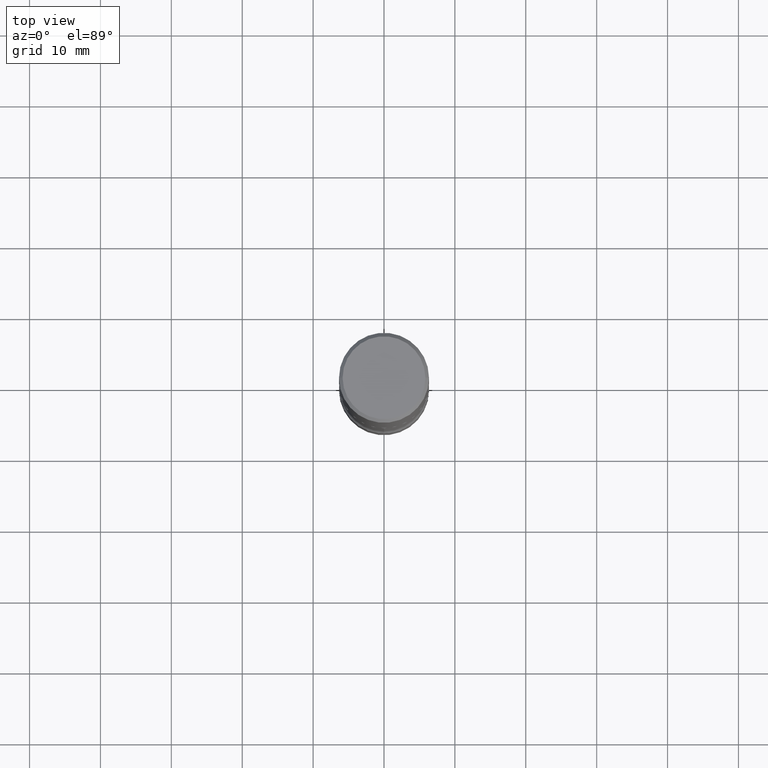
[diagram: clean part render]
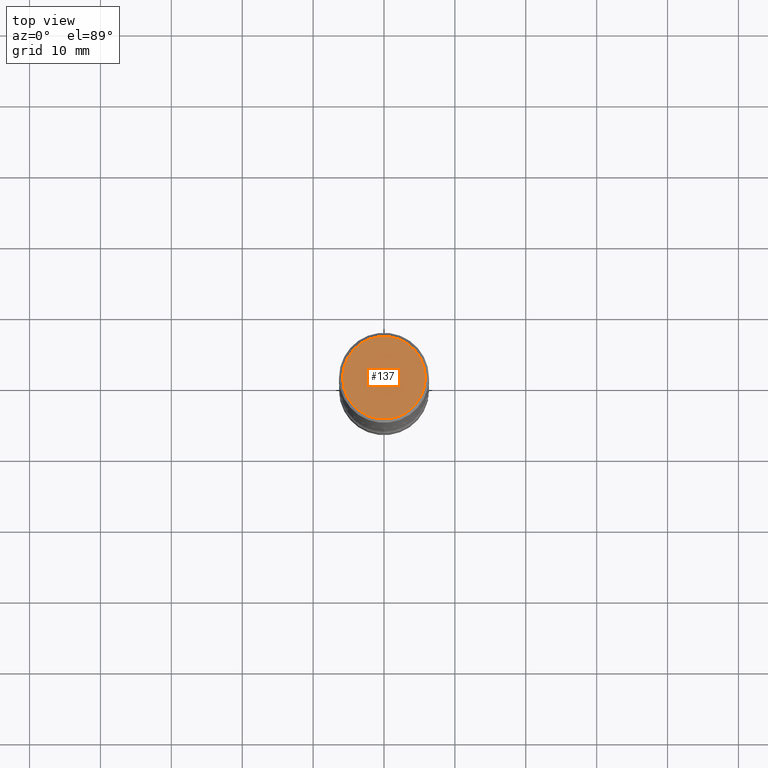
[diagram: same view with one face highlighted and labeled with its STEP entity id]
A machine part, top view. The second image highlights one B-rep face of the part: STEP entity #137.
In plain terms, the highlighted planar face has unit normal (0, -0, -1).
Its self-contained STEP definition (entity closure, byte-faithful):
#43 = AXIS2_PLACEMENT_3D ( 'NONE', #199, #61, #460 ) ;
#50 = DIRECTION ( 'NONE',  ( 1.000000000000000000, -6.982962677686265922E-15, 4.876225828469305518E-29 ) ) ;
#52 = CARTESIAN_POINT ( 'NONE',  ( 0.2300000000000001488, -1.681434332853599997E-15, 4.268512490111905999E-18 ) ) ;
#60 = DIRECTION ( 'NONE',  ( -2.445468806185136597E-29, 3.491481338843145583E-15, 1.000000000000000000 ) ) ;
#61 = DIRECTION ( 'NONE',  ( -2.445468806185136597E-29, 3.491481338843145583E-15, 1.000000000000000000 ) ) ;
#69 = PLANE ( 'NONE',  #349 ) ;
#71 = EDGE_LOOP ( 'NONE', ( #219, #207 ) ) ;
#126 = EDGE_CURVE ( 'NONE', #309, #376, #289, .T. ) ;
#137 = ADVANCED_FACE ( 'NONE', ( #386 ), #69, .F. ) ;
#157 = DIRECTION ( 'NONE',  ( -1.000000000000000000, 6.982962677686265922E-15, -4.876176775795935793E-29 ) ) ;
#186 = CARTESIAN_POINT ( 'NONE',  ( -1.043851414335219820E-46, 1.490343170380447200E-32, 4.268512490100411279E-18 ) ) ;
#199 = CARTESIAN_POINT ( 'NONE',  ( -1.043851414335219820E-46, 1.490343170380447200E-32, 4.268512490100411279E-18 ) ) ;
#207 = ORIENTED_EDGE ( 'NONE', *, *, #359, .T. ) ;
#219 = ORIENTED_EDGE ( 'NONE', *, *, #126, .T. ) ;
#260 = CIRCLE ( 'NONE', #340, 0.2300000000000001488 ) ;
#289 = CIRCLE ( 'NONE', #43, 0.2300000000000001488 ) ;
#309 = VERTEX_POINT ( 'NONE', #454 ) ;
#340 = AXIS2_PLACEMENT_3D ( 'NONE', #186, #60, #50 ) ;
#349 = AXIS2_PLACEMENT_3D ( 'NONE', #552, #382, #157 ) ;
#359 = EDGE_CURVE ( 'NONE', #376, #309, #260, .T. ) ;
#376 = VERTEX_POINT ( 'NONE', #52 ) ;
#382 = DIRECTION ( 'NONE',  ( 2.438088387897960049E-29, -3.491481338843145188E-15, -1.000000000000000000 ) ) ;
#386 = FACE_OUTER_BOUND ( 'NONE', #71, .T. ) ;
#454 = CARTESIAN_POINT ( 'NONE',  ( -0.2300000000000001488, 1.640996229256273703E-15, 4.268512490089056766E-18 ) ) ;
#460 = DIRECTION ( 'NONE',  ( 1.000000000000000000, -6.982962677686265922E-15, 4.876225828469305518E-29 ) ) ;
#552 = CARTESIAN_POINT ( 'NONE',  ( 1.606081415867842251E-15, 0.2300000000000001488, -8.009064516888738702E-16 ) ) ;